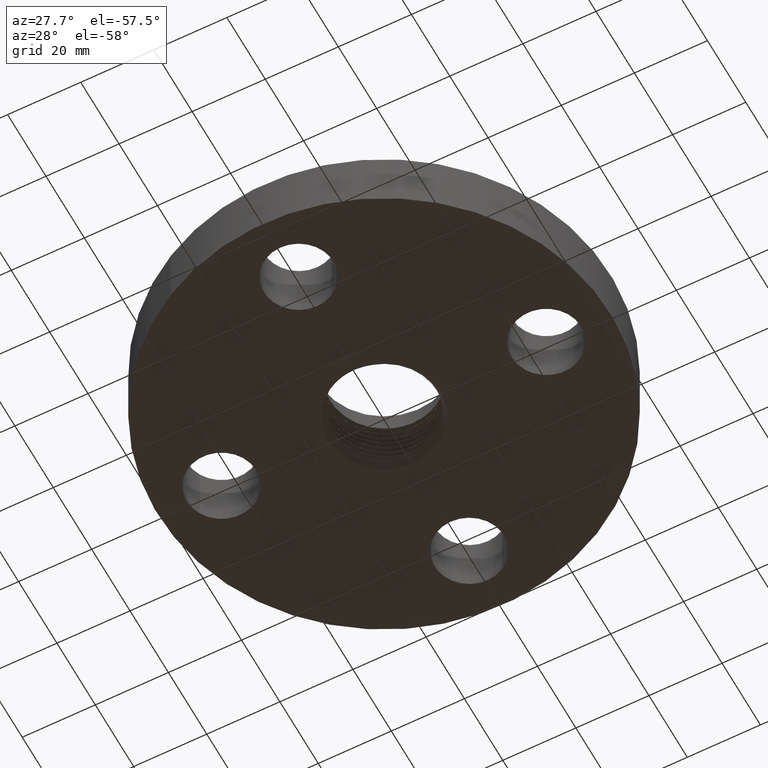
[diagram: clean part render]
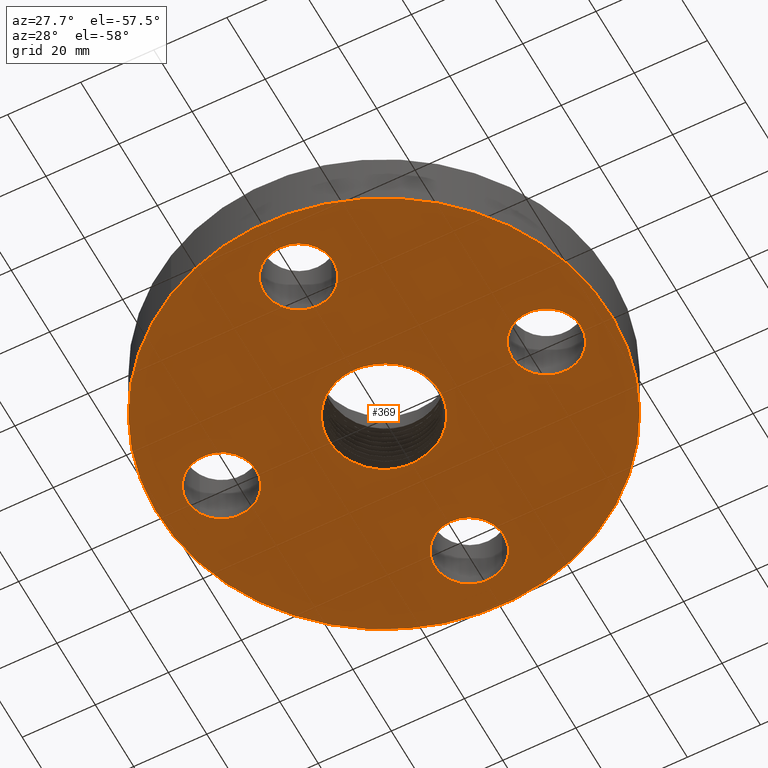
[diagram: same view with one face highlighted and labeled with its STEP entity id]
A machine part, auxiliary view. The second image highlights one B-rep face of the part: STEP entity #369.
In plain terms, the highlighted planar face has unit normal (0, 0, -1).
Its self-contained STEP definition (entity closure, byte-faithful):
#168=AXIS2_PLACEMENT_3D('Plane Axis2P3D',#165,#166,#167) ;
#172=AXIS2_PLACEMENT_3D('Circle Axis2P3D',#170,#171,$) ;
#181=AXIS2_PLACEMENT_3D('Circle Axis2P3D',#179,#180,$) ;
#285=AXIS2_PLACEMENT_3D('Circle Axis2P3D',#283,#284,$) ;
#299=AXIS2_PLACEMENT_3D('Circle Axis2P3D',#297,#298,$) ;
#308=AXIS2_PLACEMENT_3D('Circle Axis2P3D',#306,#307,$) ;
#317=AXIS2_PLACEMENT_3D('Circle Axis2P3D',#315,#316,$) ;
#326=AXIS2_PLACEMENT_3D('Circle Axis2P3D',#324,#325,$) ;
#335=AXIS2_PLACEMENT_3D('Circle Axis2P3D',#333,#334,$) ;
#344=AXIS2_PLACEMENT_3D('Circle Axis2P3D',#342,#343,$) ;
#353=AXIS2_PLACEMENT_3D('Circle Axis2P3D',#351,#352,$) ;
#362=AXIS2_PLACEMENT_3D('Circle Axis2P3D',#360,#361,$) ;
#165=CARTESIAN_POINT('Axis2P3D Location',(0.,0.,0.)) ;
#170=CARTESIAN_POINT('Axis2P3D Location',(0.,0.,0.)) ;
#174=CARTESIAN_POINT('Vertex',(1.1697983142,2.14130145102,2.09805925913E-016)) ;
#176=CARTESIAN_POINT('Vertex',(-1.1697983142,-2.14130145102,2.09805925913E-016)) ;
#179=CARTESIAN_POINT('Axis2P3D Location',(0.,0.,0.)) ;
#189=CARTESIAN_POINT('Control Point',(0.271299978907,-0.496689673381,0.)) ;
#190=CARTESIAN_POINT('Control Point',(0.26298770877,-0.500835284645,0.)) ;
#191=CARTESIAN_POINT('Control Point',(0.254593627663,-0.504808601137,0.)) ;
#192=CARTESIAN_POINT('Control Point',(0.246116760757,-0.508609860529,0.)) ;
#193=CARTESIAN_POINT('Control Point',(0.237573176216,-0.512231969355,0.)) ;
#194=CARTESIAN_POINT('Control Point',(0.228962153428,-0.515675662113,0.)) ;
#195=CARTESIAN_POINT('Vertex',(0.271299978907,-0.496689673381,-3.2782175924E-018)) ;
#197=CARTESIAN_POINT('Vertex',(0.228962368778,-0.515676127382,-3.42912796951E-007)) ;
#201=CARTESIAN_POINT('Control Point',(7.53772822639E-006,0.621744814422,0.)) ;
#202=CARTESIAN_POINT('Control Point',(0.0613614510777,0.61965997908,0.)) ;
#203=CARTESIAN_POINT('Control Point',(0.122336957072,0.610002510848,0.)) ;
#204=CARTESIAN_POINT('Control Point',(0.181673713398,0.592831896139,0.)) ;
#205=CARTESIAN_POINT('Control Point',(0.294597133596,0.544233764721,0.)) ;
#206=CARTESIAN_POINT('Control Point',(0.391737642591,0.469739399983,0.)) ;
#207=CARTESIAN_POINT('Control Point',(0.435296986307,0.426663911474,0.)) ;
#208=CARTESIAN_POINT('Control Point',(0.497992386238,0.346728572283,0.)) ;
#209=CARTESIAN_POINT('Control Point',(0.542445932193,0.256238388462,0.)) ;
#210=CARTESIAN_POINT('Control Point',(0.557115916121,0.218689340495,0.)) ;
#211=CARTESIAN_POINT('Control Point',(0.585679362371,0.122323074984,0.)) ;
#212=CARTESIAN_POINT('Control Point',(0.593532277898,0.0220484058354,0.)) ;
#213=CARTESIAN_POINT('Control Point',(0.590547798343,-0.0382483116203,0.)) ;
#214=CARTESIAN_POINT('Control Point',(0.569378481328,-0.156485998479,0.)) ;
#215=CARTESIAN_POINT('Control Point',(0.519447891957,-0.265110120041,0.)) ;
#216=CARTESIAN_POINT('Control Point',(0.487690578189,-0.315814651717,0.)) ;
#217=CARTESIAN_POINT('Control Point',(0.428507585085,-0.387739069553,0.)) ;
#218=CARTESIAN_POINT('Control Point',(0.356835377823,-0.445905928193,0.)) ;
#219=CARTESIAN_POINT('Control Point',(0.329507193413,-0.46495330646,0.)) ;
#220=CARTESIAN_POINT('Control Point',(0.300923210152,-0.481915562321,0.)) ;
#221=CARTESIAN_POINT('Control Point',(0.271299978907,-0.496689673381,0.)) ;
#222=CARTESIAN_POINT('Vertex',(7.53772822628E-006,0.621744814422,-2.73184799366E-018)) ;
#226=CARTESIAN_POINT('Control Point',(-0.303141150067,0.554900739975,0.)) ;
#227=CARTESIAN_POINT('Control Point',(-0.252448478585,0.580434933272,0.)) ;
#228=CARTESIAN_POINT('Control Point',(-0.198977278657,0.600233306834,0.)) ;
#229=CARTESIAN_POINT('Control Point',(-0.143568167979,0.613879455438,0.)) ;
#230=CARTESIAN_POINT('Control Point',(-0.0810355927578,0.621939695711,0.)) ;
#231=CARTESIAN_POINT('Control Point',(-0.0185065507828,0.622143912573,0.)) ;
#232=CARTESIAN_POINT('Control Point',(-0.0123311064587,0.622087438707,0.)) ;
#233=CARTESIAN_POINT('Control Point',(-0.00615987245548,0.62195438599,0.)) ;
#234=CARTESIAN_POINT('Control Point',(7.53772822628E-006,0.621744814422,0.)) ;
#235=CARTESIAN_POINT('Vertex',(-0.303141150067,0.554900739975,-1.09273919747E-018)) ;
#239=CARTESIAN_POINT('Control Point',(-0.3098052449,0.551494381157,0.)) ;
#240=CARTESIAN_POINT('Control Point',(-0.308476358149,0.552183595478,0.)) ;
#241=CARTESIAN_POINT('Control Point',(-0.307145491518,0.552868845419,0.)) ;
#242=CARTESIAN_POINT('Control Point',(-0.305812640243,0.553550133481,0.)) ;
#243=CARTESIAN_POINT('Control Point',(-0.304477861301,0.554227430757,0.)) ;
#244=CARTESIAN_POINT('Control Point',(-0.303141150067,0.554900739975,0.)) ;
#245=CARTESIAN_POINT('Vertex',(-0.3098052449,0.551494381157,7.64917438226E-018)) ;
#249=CARTESIAN_POINT('Control Point',(-0.3098052449,0.551494381157,0.)) ;
#250=CARTESIAN_POINT('Control Point',(-0.362634411424,0.51919827061,0.)) ;
#251=CARTESIAN_POINT('Control Point',(-0.411393503072,0.480504514967,0.)) ;
#252=CARTESIAN_POINT('Control Point',(-0.455026465903,0.436081826374,0.)) ;
#253=CARTESIAN_POINT('Control Point',(-0.530288580438,0.337641258224,0.)) ;
#254=CARTESIAN_POINT('Control Point',(-0.579099719314,0.224372009056,0.)) ;
#255=CARTESIAN_POINT('Control Point',(-0.596287252816,0.165101962827,0.)) ;
#256=CARTESIAN_POINT('Control Point',(-0.612320378678,0.0640408299079,0.)) ;
#257=CARTESIAN_POINT('Control Point',(-0.607284645391,-0.0373504809444,0.)) ;
#258=CARTESIAN_POINT('Control Point',(-0.601894036663,-0.0775795129431,0.)) ;
#259=CARTESIAN_POINT('Control Point',(-0.580115738985,-0.176402887789,0.)) ;
#260=CARTESIAN_POINT('Control Point',(-0.538332793825,-0.268595443945,0.)) ;
#261=CARTESIAN_POINT('Control Point',(-0.506465234719,-0.320304651556,0.)) ;
#262=CARTESIAN_POINT('Control Point',(-0.430555490545,-0.414331004235,0.)) ;
#263=CARTESIAN_POINT('Control Point',(-0.33409428073,-0.486062996951,0.)) ;
#264=CARTESIAN_POINT('Control Point',(-0.281643217864,-0.51550228497,0.)) ;
#265=CARTESIAN_POINT('Control Point',(-0.194093133537,-0.550798422847,0.)) ;
#266=CARTESIAN_POINT('Control Point',(-0.102121742319,-0.567736967022,0.)) ;
#267=CARTESIAN_POINT('Control Point',(-0.0680833395716,-0.571419621217,0.)) ;
#268=CARTESIAN_POINT('Control Point',(-0.0339487172308,-0.572557752663,0.)) ;
#269=CARTESIAN_POINT('Control Point',(2.73118178898E-005,-0.571167580647,0.)) ;
#270=CARTESIAN_POINT('Vertex',(2.73118178895E-005,-0.571167580647,-1.09273919747E-018)) ;
#274=CARTESIAN_POINT('Control Point',(2.73118178895E-005,-0.571167580647,0.)) ;
#275=CARTESIAN_POINT('Control Point',(0.0339256086951,-0.569780589167,0.)) ;
#276=CARTESIAN_POINT('Control Point',(0.0676659157495,-0.565876871703,0.)) ;
#277=CARTESIAN_POINT('Control Point',(0.101001207444,-0.559471268786,0.)) ;
#278=CARTESIAN_POINT('Control Point',(0.133680287625,-0.550619592431,0.)) ;
#279=CARTESIAN_POINT('Control Point',(0.165468463595,-0.53941121343,0.)) ;
#280=CARTESIAN_POINT('Vertex',(0.165468826136,-0.539412400181,6.55953027678E-007)) ;
#283=CARTESIAN_POINT('Axis2P3D Location',(6.99353086378E-017,-1.74838271595E-017,0.)) ;
#297=CARTESIAN_POINT('Axis2P3D Location',(1.75000000001,3.49676543189E-017,0.)) ;
#301=CARTESIAN_POINT('Vertex',(2.07909346072,-0.179784576977,0.)) ;
#303=CARTESIAN_POINT('Vertex',(1.4209065393,0.179784576977,0.)) ;
#306=CARTESIAN_POINT('Axis2P3D Location',(1.75000000001,0.,0.)) ;
#315=CARTESIAN_POINT('Axis2P3D Location',(-1.39870617276E-016,-1.75000000001,0.)) ;
#319=CARTESIAN_POINT('Vertex',(0.179784576977,-1.4209065393,0.)) ;
#321=CARTESIAN_POINT('Vertex',(-0.179784576977,-2.07909346072,0.)) ;
#324=CARTESIAN_POINT('Axis2P3D Location',(-2.44773580232E-016,-1.75000000001,0.)) ;
#333=CARTESIAN_POINT('Axis2P3D Location',(-1.75000000001,-2.79741234551E-016,0.)) ;
#337=CARTESIAN_POINT('Vertex',(-1.4209065393,-0.179784576977,0.)) ;
#339=CARTESIAN_POINT('Vertex',(-2.07909346072,0.179784576977,0.)) ;
#342=CARTESIAN_POINT('Axis2P3D Location',(-1.75000000001,-2.09805925913E-016,0.)) ;
#351=CARTESIAN_POINT('Axis2P3D Location',(-4.19611851827E-016,1.75000000001,0.)) ;
#355=CARTESIAN_POINT('Vertex',(-0.179784576977,1.4209065393,0.)) ;
#357=CARTESIAN_POINT('Vertex',(0.179784576977,2.07909346072,0.)) ;
#360=CARTESIAN_POINT('Axis2P3D Location',(-3.1470888887E-016,1.75000000001,0.)) ;
#166=DIRECTION('Axis2P3D Direction',(0.,0.,-0.0393700787402)) ;
#167=DIRECTION('Axis2P3D XDirection',(0.0393700787402,0.,0.)) ;
#171=DIRECTION('Axis2P3D Direction',(0.,0.,-0.0393700787402)) ;
#180=DIRECTION('Axis2P3D Direction',(0.,0.,-0.0393700787402)) ;
#284=DIRECTION('Axis2P3D Direction',(0.,0.,-0.0393700787402)) ;
#298=DIRECTION('Axis2P3D Direction',(0.,0.,-0.0393700787402)) ;
#307=DIRECTION('Axis2P3D Direction',(0.,0.,-0.0393700787402)) ;
#316=DIRECTION('Axis2P3D Direction',(0.,0.,-0.0393700787402)) ;
#325=DIRECTION('Axis2P3D Direction',(0.,0.,-0.0393700787402)) ;
#334=DIRECTION('Axis2P3D Direction',(0.,0.,-0.0393700787402)) ;
#343=DIRECTION('Axis2P3D Direction',(0.,0.,-0.0393700787402)) ;
#352=DIRECTION('Axis2P3D Direction',(0.,0.,-0.0393700787402)) ;
#361=DIRECTION('Axis2P3D Direction',(0.,0.,-0.0393700787402)) ;
#185=ORIENTED_EDGE('',*,*,#178,.T.) ;
#186=ORIENTED_EDGE('',*,*,#183,.T.) ;
#289=ORIENTED_EDGE('',*,*,#199,.F.) ;
#290=ORIENTED_EDGE('',*,*,#224,.F.) ;
#291=ORIENTED_EDGE('',*,*,#237,.F.) ;
#292=ORIENTED_EDGE('',*,*,#247,.F.) ;
#293=ORIENTED_EDGE('',*,*,#272,.T.) ;
#294=ORIENTED_EDGE('',*,*,#282,.T.) ;
#295=ORIENTED_EDGE('',*,*,#287,.F.) ;
#312=ORIENTED_EDGE('',*,*,#305,.F.) ;
#313=ORIENTED_EDGE('',*,*,#310,.F.) ;
#330=ORIENTED_EDGE('',*,*,#323,.F.) ;
#331=ORIENTED_EDGE('',*,*,#328,.F.) ;
#348=ORIENTED_EDGE('',*,*,#341,.F.) ;
#349=ORIENTED_EDGE('',*,*,#346,.F.) ;
#366=ORIENTED_EDGE('',*,*,#359,.F.) ;
#367=ORIENTED_EDGE('',*,*,#364,.F.) ;
#296=FACE_BOUND('',#288,.T.) ;
#314=FACE_BOUND('',#311,.T.) ;
#332=FACE_BOUND('',#329,.T.) ;
#350=FACE_BOUND('',#347,.T.) ;
#368=FACE_BOUND('',#365,.T.) ;
#369=ADVANCED_FACE('PartBody',(#187,#296,#314,#332,#350,#368),#169,.T.) ;
#188=B_SPLINE_CURVE_WITH_KNOTS('',5,(#189,#190,#191,#192,#193,#194),.UNSPECIFIED.,.F.,.U.,(6,6),(0.,1.71568002647),.UNSPECIFIED.) ;
#200=B_SPLINE_CURVE_WITH_KNOTS('',5,(#201,#202,#203,#204,#205,#206,#207,#208,#209,#210,#211,#212,#213,#214,#215,#216,#217,#218,#219,#220,#221),.UNSPECIFIED.,.F.,.U.,(6,3,3,3,3,3,6),(0.,10.8250310914,21.6513775837,28.8651711543,39.6835615033,50.5062164453,56.6205492825),.UNSPECIFIED.) ;
#225=B_SPLINE_CURVE_WITH_KNOTS('',5,(#226,#227,#228,#229,#230,#231,#232,#233,#234),.UNSPECIFIED.,.F.,.U.,(6,3,6),(0.,9.93047999996,11.0186323826),.UNSPECIFIED.) ;
#238=B_SPLINE_CURVE_WITH_KNOTS('',5,(#239,#240,#241,#242,#243,#244),.UNSPECIFIED.,.F.,.U.,(6,6),(0.,0.261856078769),.UNSPECIFIED.) ;
#248=B_SPLINE_CURVE_WITH_KNOTS('',5,(#249,#250,#251,#252,#253,#254,#255,#256,#257,#258,#259,#260,#261,#262,#263,#264,#265,#266,#267,#268,#269),.UNSPECIFIED.,.F.,.U.,(6,3,3,3,3,3,6),(0.,10.8313668391,21.6658901383,28.8864235144,39.7171419181,50.5552199847,56.8197178888),.UNSPECIFIED.) ;
#273=B_SPLINE_CURVE_WITH_KNOTS('',5,(#274,#275,#276,#277,#278,#279),.UNSPECIFIED.,.F.,.U.,(6,6),(0.,6.25016565091),.UNSPECIFIED.) ;
#173=CIRCLE('generated circle',#172,2.44000000001) ;
#182=CIRCLE('generated circle',#181,2.44000000001) ;
#286=CIRCLE('generated circle',#285,0.564221274643) ;
#300=CIRCLE('generated circle',#299,0.375000000001) ;
#309=CIRCLE('generated circle',#308,0.375000000001) ;
#318=CIRCLE('generated circle',#317,0.375000000001) ;
#327=CIRCLE('generated circle',#326,0.375000000001) ;
#336=CIRCLE('generated circle',#335,0.375000000002) ;
#345=CIRCLE('generated circle',#344,0.375000000002) ;
#354=CIRCLE('generated circle',#353,0.375000000001) ;
#363=CIRCLE('generated circle',#362,0.375000000001) ;
#178=EDGE_CURVE('',#175,#177,#173,.T.) ;
#183=EDGE_CURVE('',#177,#175,#182,.T.) ;
#199=EDGE_CURVE('',#196,#198,#188,.T.) ;
#224=EDGE_CURVE('',#223,#196,#200,.T.) ;
#237=EDGE_CURVE('',#236,#223,#225,.T.) ;
#247=EDGE_CURVE('',#246,#236,#238,.T.) ;
#272=EDGE_CURVE('',#246,#271,#248,.T.) ;
#282=EDGE_CURVE('',#271,#281,#273,.T.) ;
#287=EDGE_CURVE('',#198,#281,#286,.T.) ;
#305=EDGE_CURVE('',#302,#304,#300,.T.) ;
#310=EDGE_CURVE('',#304,#302,#309,.T.) ;
#323=EDGE_CURVE('',#320,#322,#318,.T.) ;
#328=EDGE_CURVE('',#322,#320,#327,.T.) ;
#341=EDGE_CURVE('',#338,#340,#336,.T.) ;
#346=EDGE_CURVE('',#340,#338,#345,.T.) ;
#359=EDGE_CURVE('',#356,#358,#354,.T.) ;
#364=EDGE_CURVE('',#358,#356,#363,.T.) ;
#184=EDGE_LOOP('',(#185,#186)) ;
#288=EDGE_LOOP('',(#289,#290,#291,#292,#293,#294,#295)) ;
#311=EDGE_LOOP('',(#312,#313)) ;
#329=EDGE_LOOP('',(#330,#331)) ;
#347=EDGE_LOOP('',(#348,#349)) ;
#365=EDGE_LOOP('',(#366,#367)) ;
#187=FACE_OUTER_BOUND('',#184,.T.) ;
#169=PLANE('',#168) ;
#175=VERTEX_POINT('',#174) ;
#177=VERTEX_POINT('',#176) ;
#196=VERTEX_POINT('',#195) ;
#198=VERTEX_POINT('',#197) ;
#223=VERTEX_POINT('',#222) ;
#236=VERTEX_POINT('',#235) ;
#246=VERTEX_POINT('',#245) ;
#271=VERTEX_POINT('',#270) ;
#281=VERTEX_POINT('',#280) ;
#302=VERTEX_POINT('',#301) ;
#304=VERTEX_POINT('',#303) ;
#320=VERTEX_POINT('',#319) ;
#322=VERTEX_POINT('',#321) ;
#338=VERTEX_POINT('',#337) ;
#340=VERTEX_POINT('',#339) ;
#356=VERTEX_POINT('',#355) ;
#358=VERTEX_POINT('',#357) ;